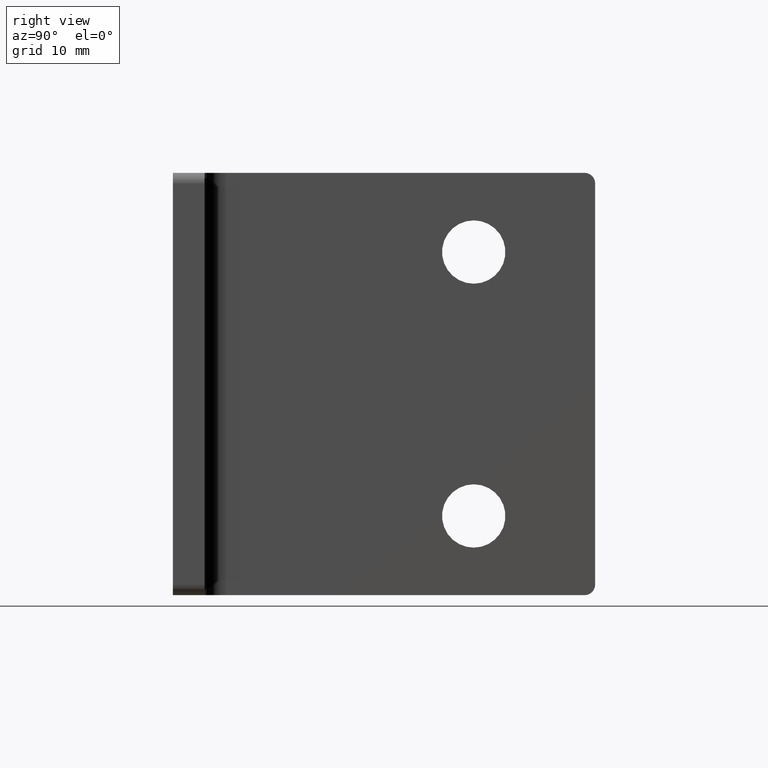
[diagram: clean part render]
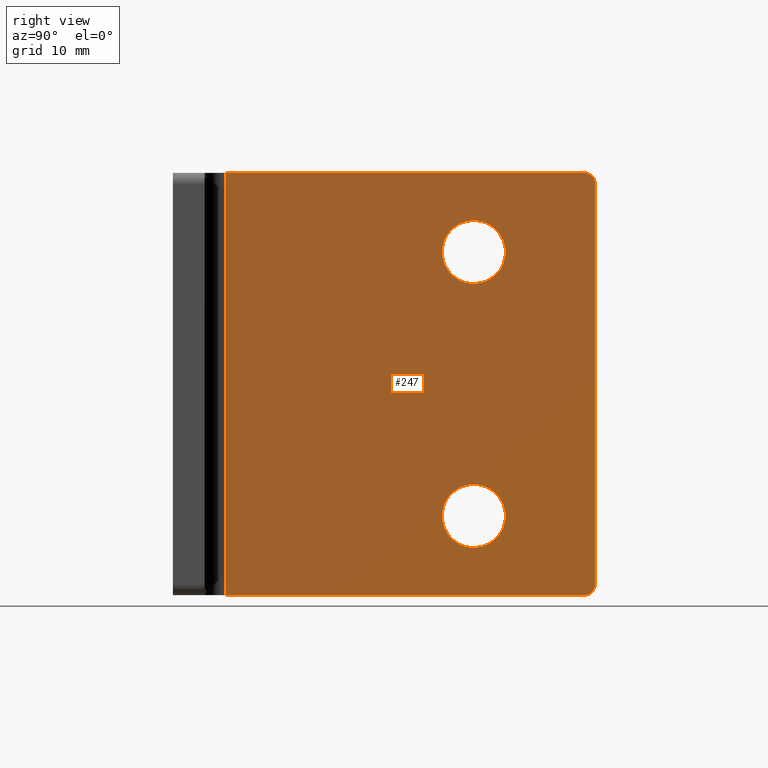
[diagram: same view with one face highlighted and labeled with its STEP entity id]
A machine part, right view. The second image highlights one B-rep face of the part: STEP entity #247.
In plain terms, the highlighted planar face has unit normal (-1, 0, 0).
Its self-contained STEP definition (entity closure, byte-faithful):
#7=CARTESIAN_POINT('',(-36.999999999999986,28.500000000000000,9.500000000000004));
#8=VERTEX_POINT('',#7);
#9=CARTESIAN_POINT('',(-36.999999999999986,28.500000000000000,15.500000000000000));
#10=VERTEX_POINT('',#9);
#11=CARTESIAN_POINT('',(-36.999999999999986,28.500000000000000,12.500000000000000));
#12=DIRECTION('',(-1.0,0.0,0.0));
#13=DIRECTION('',(0.0,0.0,1.0));
#14=AXIS2_PLACEMENT_3D('',#11,#12,#13);
#15=CIRCLE('',#14,3.0);
#16=EDGE_CURVE('',#8,#10,#15,.T.);
#49=CARTESIAN_POINT('',(-36.999999999999986,28.500000000000000,-15.500000000000014));
#50=VERTEX_POINT('',#49);
#51=CARTESIAN_POINT('',(-36.999999999999986,28.500000000000000,-9.500000000000011));
#52=VERTEX_POINT('',#51);
#53=CARTESIAN_POINT('',(-36.999999999999986,28.500000000000000,-12.500000000000000));
#54=DIRECTION('',(-1.0,0.0,0.0));
#55=DIRECTION('',(0.0,0.0,1.0));
#56=AXIS2_PLACEMENT_3D('',#53,#54,#55);
#57=CIRCLE('',#56,2.999999999999999);
#58=EDGE_CURVE('',#50,#52,#57,.T.);
#170=CARTESIAN_POINT('',(-36.999999999999986,3.249999999999993,-22.0));
#171=DIRECTION('',(-1.0,0.0,0.0));
#172=DIRECTION('',(0.0,0.0,1.0));
#173=AXIS2_PLACEMENT_3D('',#170,#171,#172);
#174=PLANE('',#173);
#175=CARTESIAN_POINT('',(-36.999999999999986,39.0,20.0));
#176=VERTEX_POINT('',#175);
#177=CARTESIAN_POINT('',(-36.999999999999986,4.999999999999996,20.0));
#178=VERTEX_POINT('',#177);
#179=CARTESIAN_POINT('',(-36.999999999999986,39.0,20.0));
#180=DIRECTION('',(0.0,-1.0,0.0));
#181=VECTOR('',#180,34.0);
#182=LINE('',#179,#181);
#183=EDGE_CURVE('',#176,#178,#182,.T.);
#184=ORIENTED_EDGE('',*,*,#183,.T.);
#185=CARTESIAN_POINT('',(-36.999999999999986,4.999999999999996,-20.0));
#186=VERTEX_POINT('',#185);
#187=CARTESIAN_POINT('',(-36.999999999999986,4.999999999999993,20.0));
#188=DIRECTION('',(0.0,0.0,-1.0));
#189=VECTOR('',#188,40.0);
#190=LINE('',#187,#189);
#191=EDGE_CURVE('',#178,#186,#190,.T.);
#192=ORIENTED_EDGE('',*,*,#191,.T.);
#193=CARTESIAN_POINT('',(-36.999999999999986,39.0,-20.0));
#194=VERTEX_POINT('',#193);
#195=CARTESIAN_POINT('',(-36.999999999999986,39.0,-20.0));
#196=DIRECTION('',(0.0,-1.0,0.0));
#197=VECTOR('',#196,34.0);
#198=LINE('',#195,#197);
#199=EDGE_CURVE('',#194,#186,#198,.T.);
#200=ORIENTED_EDGE('',*,*,#199,.F.);
#201=CARTESIAN_POINT('',(-36.999999999999986,40.0,-19.0));
#202=VERTEX_POINT('',#201);
#203=CARTESIAN_POINT('',(-36.999999999999986,39.0,-19.0));
#204=DIRECTION('',(1.0,0.0,0.0));
#205=DIRECTION('',(0.0,0.0,1.0));
#206=AXIS2_PLACEMENT_3D('',#203,#204,#205);
#207=CIRCLE('',#206,1.000000000000001);
#208=EDGE_CURVE('',#194,#202,#207,.T.);
#209=ORIENTED_EDGE('',*,*,#208,.T.);
#210=CARTESIAN_POINT('',(-36.999999999999986,40.0,19.0));
#211=VERTEX_POINT('',#210);
#212=CARTESIAN_POINT('',(-36.999999999999986,40.0,-19.0));
#213=DIRECTION('',(0.0,0.0,1.0));
#214=VECTOR('',#213,38.0);
#215=LINE('',#212,#214);
#216=EDGE_CURVE('',#202,#211,#215,.T.);
#217=ORIENTED_EDGE('',*,*,#216,.T.);
#218=CARTESIAN_POINT('',(-36.999999999999986,39.0,19.0));
#219=DIRECTION('',(1.0,0.0,0.0));
#220=DIRECTION('',(0.0,0.0,1.0));
#221=AXIS2_PLACEMENT_3D('',#218,#219,#220);
#222=CIRCLE('',#221,1.0);
#223=EDGE_CURVE('',#211,#176,#222,.T.);
#224=ORIENTED_EDGE('',*,*,#223,.T.);
#225=EDGE_LOOP('',(#184,#192,#200,#209,#217,#224));
#226=FACE_OUTER_BOUND('',#225,.T.);
#227=CARTESIAN_POINT('',(-36.999999999999986,28.500000000000000,-12.500000000000000));
#228=DIRECTION('',(-1.0,0.0,0.0));
#229=DIRECTION('',(0.0,0.0,1.0));
#230=AXIS2_PLACEMENT_3D('',#227,#228,#229);
#231=CIRCLE('',#230,2.999999999999999);
#232=EDGE_CURVE('',#52,#50,#231,.T.);
#233=ORIENTED_EDGE('',*,*,#232,.T.);
#234=ORIENTED_EDGE('',*,*,#58,.T.);
#235=EDGE_LOOP('',(#233,#234));
#236=FACE_BOUND('',#235,.T.);
#237=CARTESIAN_POINT('',(-36.999999999999986,28.500000000000000,12.500000000000000));
#238=DIRECTION('',(-1.0,0.0,0.0));
#239=DIRECTION('',(0.0,0.0,1.0));
#240=AXIS2_PLACEMENT_3D('',#237,#238,#239);
#241=CIRCLE('',#240,3.0);
#242=EDGE_CURVE('',#10,#8,#241,.T.);
#243=ORIENTED_EDGE('',*,*,#242,.T.);
#244=ORIENTED_EDGE('',*,*,#16,.T.);
#245=EDGE_LOOP('',(#243,#244));
#246=FACE_BOUND('',#245,.T.);
#247=ADVANCED_FACE('',(#226,#236,#246),#174,.F.);